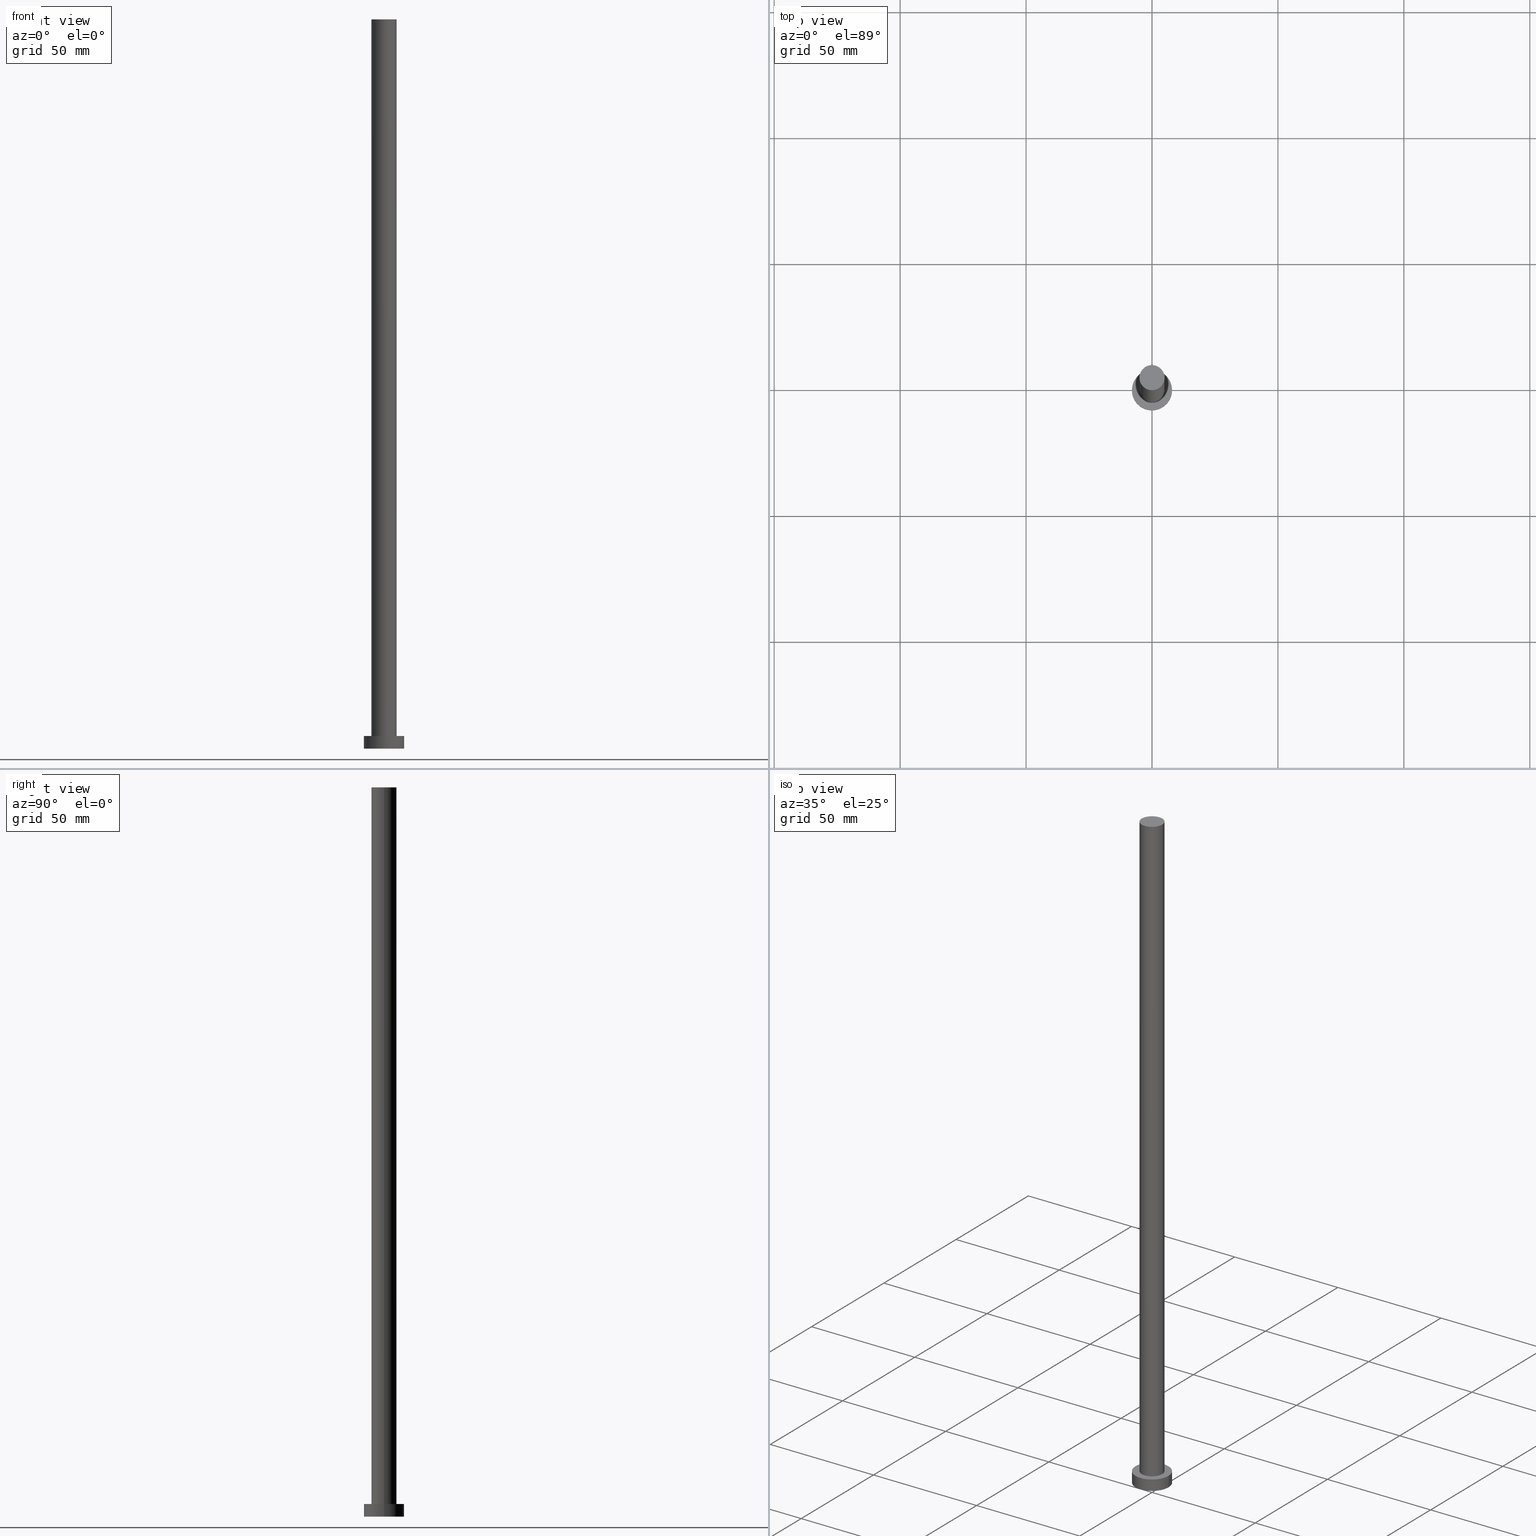
[diagram: canonical four-view strip — front | top / right | iso, engineering-drawing reading convention]
A machine part, canonical four-view strip (front | top / right | iso — engineering-drawing reading convention). The complete STEP part file that produces these views, byte-faithful:
ISO-10303-21;
HEADER;
FILE_DESCRIPTION (( 'STEP AP203' ),
    '1' );
FILE_NAME ('f540.STEP',
    '2023-03-02T13:17:27',
    ( '' ),
    ( '' ),
    'SwSTEP 2.0',
    'SolidWorks 2019',
    '' );
FILE_SCHEMA (( 'CONFIG_CONTROL_DESIGN' ));
ENDSEC;

DATA;
#1 = COORDINATED_UNIVERSAL_TIME_OFFSET ( 1, 0, .AHEAD. ) ;
#2 = CARTESIAN_POINT ( 'NONE',  ( 0.000000000000000000, 0.000000000000000000, 0.000000000000000000 ) ) ;
#3 = APPROVAL_PERSON_ORGANIZATION ( #96, #226, #100 ) ;
#4 = ORIENTED_EDGE ( 'NONE', *, *, #206, .T. ) ;
#5 = DATE_AND_TIME ( #167, #19 ) ;
#6 = VECTOR ( 'NONE', #211, 1000.000000000000000 ) ;
#7 = CARTESIAN_POINT ( 'NONE',  ( -8.000000000000000000, 0.000000000000000000, 5.000000000000000000 ) ) ;
#8 = AXIS2_PLACEMENT_3D ( 'NONE', #94, #136, #14 ) ;
#9 = DIRECTION ( 'NONE',  ( -1.000000000000000000, 0.000000000000000000, 0.000000000000000000 ) ) ;
#10 = AXIS2_PLACEMENT_3D ( 'NONE', #191, #158, #179 ) ;
#11 = ADVANCED_FACE ( 'NONE', ( #141 ), #224, .F. ) ;
#12 = LINE ( 'NONE', #169, #15 ) ;
#13 = APPROVAL_DATE_TIME ( #249, #140 ) ;
#14 = DIRECTION ( 'NONE',  ( 1.000000000000000000, 0.000000000000000000, 0.000000000000000000 ) ) ;
#15 = VECTOR ( 'NONE', #29, 1000.000000000000000 ) ;
#16 = AXIS2_PLACEMENT_3D ( 'NONE', #238, #52, #59 ) ;
#17 = FACE_OUTER_BOUND ( 'NONE', #175, .T. ) ;
#18 = PERSON_AND_ORGANIZATION ( #235, #42 ) ;
#19 = LOCAL_TIME ( 14, 17, 27.00000000000000000, #208 ) ;
#20 = ORIENTED_EDGE ( 'NONE', *, *, #128, .T. ) ;
#21 = APPROVAL_ROLE ( '' ) ;
#22 = ORIENTED_EDGE ( 'NONE', *, *, #160, .T. ) ;
#23 = APPLICATION_PROTOCOL_DEFINITION ( 'international standard', 'config_control_design', 1994, #53 ) ;
#24 = VERTEX_POINT ( 'NONE', #255 ) ;
#25 = APPROVAL_ROLE ( '' ) ;
#26 = DIRECTION ( 'NONE',  ( 1.000000000000000000, 0.000000000000000000, -0.000000000000000000 ) ) ;
#27 = EDGE_CURVE ( 'NONE', #97, #180, #47, .T. ) ;
#28 = LINE ( 'NONE', #152, #237 ) ;
#29 = DIRECTION ( 'NONE',  ( -0.000000000000000000, -0.000000000000000000, -1.000000000000000000 ) ) ;
#30 = PERSON_AND_ORGANIZATION ( #235, #42 ) ;
#31 = DIRECTION ( 'NONE',  ( -0.000000000000000000, -0.000000000000000000, -1.000000000000000000 ) ) ;
#32 = CIRCLE ( 'NONE', #58, 5.000000000000000888 ) ;
#33 = EDGE_LOOP ( 'NONE', ( #123, #114, #22, #37 ) ) ;
#34 = CIRCLE ( 'NONE', #216, 5.000000000000000888 ) ;
#35 = EDGE_LOOP ( 'NONE', ( #124, #201, #146, #139 ) ) ;
#36 = AXIS2_PLACEMENT_3D ( 'NONE', #57, #153, #178 ) ;
#37 = ORIENTED_EDGE ( 'NONE', *, *, #118, .F. ) ;
#38 = ADVANCED_FACE ( 'NONE', ( #65 ), #198, .T. ) ;
#39 = APPROVAL_DATE_TIME ( #159, #226 ) ;
#40 = EDGE_LOOP ( 'NONE', ( #239, #126 ) ) ;
#41 = VECTOR ( 'NONE', #73, 1000.000000000000000 ) ;
#42 = ORGANIZATION ( 'NEUR�EN�', 'NEUR�EN�', '' ) ;
#43 = PERSON_AND_ORGANIZATION ( #235, #42 ) ;
#44 = DATE_TIME_ROLE ( 'creation_date' ) ;
#45 = CARTESIAN_POINT ( 'NONE',  ( 0.000000000000000000, 0.000000000000000000, 289.5000000000000000 ) ) ;
#46 = DIRECTION ( 'NONE',  ( 0.000000000000000000, 0.000000000000000000, 1.000000000000000000 ) ) ;
#47 = CIRCLE ( 'NONE', #234, 8.000000000000000000 ) ;
#48 = DIRECTION ( 'NONE',  ( 1.000000000000000000, 0.000000000000000000, 0.000000000000000000 ) ) ;
#49 = DIRECTION ( 'NONE',  ( 0.000000000000000000, 0.000000000000000000, 1.000000000000000000 ) ) ;
#50 = UNCERTAINTY_MEASURE_WITH_UNIT (LENGTH_MEASURE( 1.000000000000000082E-05 ), #115, 'distance_accuracy_value', 'NONE');
#51 = SECURITY_CLASSIFICATION ( '', '', #142 ) ;
#52 = DIRECTION ( 'NONE',  ( 0.000000000000000000, 0.000000000000000000, 1.000000000000000000 ) ) ;
#53 = APPLICATION_CONTEXT ( 'configuration controlled 3d designs of mechanical parts and assemblies' ) ;
#54 = ORIENTED_EDGE ( 'NONE', *, *, #165, .T. ) ;
#55 = PERSON_AND_ORGANIZATION_ROLE ( 'classification_officer' ) ;
#56 = CC_DESIGN_PERSON_AND_ORGANIZATION_ASSIGNMENT ( #43, #166, ( #93 ) ) ;
#57 = CARTESIAN_POINT ( 'NONE',  ( 0.000000000000000000, 0.000000000000000000, 289.5000000000000000 ) ) ;
#58 = AXIS2_PLACEMENT_3D ( 'NONE', #45, #187, #148 ) ;
#59 = DIRECTION ( 'NONE',  ( 1.000000000000000000, 0.000000000000000000, -0.000000000000000000 ) ) ;
#60 = ORIENTED_EDGE ( 'NONE', *, *, #72, .F. ) ;
#61 = ORIENTED_EDGE ( 'NONE', *, *, #165, .F. ) ;
#62 = PRODUCT_RELATED_PRODUCT_CATEGORY ( 'detail', '', ( #233 ) ) ;
#63 = AXIS2_PLACEMENT_3D ( 'NONE', #74, #194, #80 ) ;
#64 = PERSON_AND_ORGANIZATION ( #235, #42 ) ;
#65 = FACE_OUTER_BOUND ( 'NONE', #117, .T. ) ;
#66 = APPROVAL_DATE_TIME ( #229, #102 ) ;
#67 = MECHANICAL_CONTEXT ( 'NONE', #53, 'mechanical' ) ;
#68 = VERTEX_POINT ( 'NONE', #228 ) ;
#69 = DIRECTION ( 'NONE',  ( -0.000000000000000000, -0.000000000000000000, -1.000000000000000000 ) ) ;
#70 = LOCAL_TIME ( 14, 17, 27.00000000000000000, #144 ) ;
#71 = FACE_OUTER_BOUND ( 'NONE', #251, .T. ) ;
#72 = EDGE_CURVE ( 'NONE', #79, #182, #188, .T. ) ;
#73 = DIRECTION ( 'NONE',  ( -0.000000000000000000, -0.000000000000000000, -1.000000000000000000 ) ) ;
#74 = CARTESIAN_POINT ( 'NONE',  ( 0.000000000000000000, 0.000000000000000000, 289.5000000000000000 ) ) ;
#75 = FACE_OUTER_BOUND ( 'NONE', #40, .T. ) ;
#76 = EDGE_LOOP ( 'NONE', ( #61, #204 ) ) ;
#77 = EDGE_CURVE ( 'NONE', #68, #196, #12, .T. ) ;
#78 = CALENDAR_DATE ( 2023, 2, 3 ) ;
#79 = VERTEX_POINT ( 'NONE', #189 ) ;
#80 = DIRECTION ( 'NONE',  ( -1.000000000000000000, 0.000000000000000000, 0.000000000000000000 ) ) ;
#81 = PERSON_AND_ORGANIZATION ( #235, #42 ) ;
#82 = EDGE_CURVE ( 'NONE', #253, #68, #32, .T. ) ;
#83 = AXIS2_PLACEMENT_3D ( 'NONE', #215, #134, #236 ) ;
#84 = DIRECTION ( 'NONE',  ( 0.000000000000000000, 0.000000000000000000, 1.000000000000000000 ) ) ;
#85 = PERSON_AND_ORGANIZATION_ROLE ( 'design_owner' ) ;
#86 = EDGE_LOOP ( 'NONE', ( #195, #60 ) ) ;
#87 = DIRECTION ( 'NONE',  ( 1.000000000000000000, 0.000000000000000000, 0.000000000000000000 ) ) ;
#88 = AXIS2_PLACEMENT_3D ( 'NONE', #2, #84, #48 ) ;
#89 = CC_DESIGN_APPROVAL ( #140, ( #51 ) ) ;
#90 = LINE ( 'NONE', #7, #6 ) ;
#91 = CARTESIAN_POINT ( 'NONE',  ( -8.000000000000000000, 0.000000000000000000, 5.000000000000000000 ) ) ;
#92 = CYLINDRICAL_SURFACE ( 'NONE', #116, 8.000000000000000000 ) ;
#93 = PRODUCT_DEFINITION ( 'NEZN�M�', '', #199, #222 ) ;
#94 = CARTESIAN_POINT ( 'NONE',  ( 0.000000000000000000, 0.000000000000000000, 5.000000000000000000 ) ) ;
#95 = PLANE ( 'NONE',  #16 ) ;
#96 = PERSON_AND_ORGANIZATION ( #235, #42 ) ;
#97 = VERTEX_POINT ( 'NONE', #91 ) ;
#98 =( GEOMETRIC_REPRESENTATION_CONTEXT ( 3 ) GLOBAL_UNCERTAINTY_ASSIGNED_CONTEXT ( ( #50 ) ) GLOBAL_UNIT_ASSIGNED_CONTEXT ( ( #115, #192, #185 ) ) REPRESENTATION_CONTEXT ( 'NONE', 'WORKASPACE' ) );
#99 = CALENDAR_DATE ( 2023, 2, 3 ) ;
#100 = APPROVAL_ROLE ( '' ) ;
#101 = DIRECTION ( 'NONE',  ( -1.000000000000000000, 0.000000000000000000, 0.000000000000000000 ) ) ;
#102 = APPROVAL ( #227, 'NEUR�EN�' ) ;
#103 = APPROVAL_PERSON_ORGANIZATION ( #220, #102, #21 ) ;
#104 = ORIENTED_EDGE ( 'NONE', *, *, #82, .T. ) ;
#105 = CARTESIAN_POINT ( 'NONE',  ( 0.000000000000000000, 0.000000000000000000, 5.000000000000000000 ) ) ;
#106 = DATE_TIME_ROLE ( 'classification_date' ) ;
#107 = CYLINDRICAL_SURFACE ( 'NONE', #209, 8.000000000000000000 ) ;
#108 = CC_DESIGN_PERSON_AND_ORGANIZATION_ASSIGNMENT ( #64, #85, ( #233 ) ) ;
#109 = PRODUCT_DEFINITION_SHAPE ( 'NONE', 'NONE',  #93 ) ;
#110 = CIRCLE ( 'NONE', #221, 5.000000000000000888 ) ;
#111 = CARTESIAN_POINT ( 'NONE',  ( 8.000000000000000000, 9.797174393178825657E-16, 5.000000000000000000 ) ) ;
#112 = APPROVAL_PERSON_ORGANIZATION ( #30, #140, #25 ) ;
#113 = CC_DESIGN_PERSON_AND_ORGANIZATION_ASSIGNMENT ( #81, #163, ( #199 ) ) ;
#114 = ORIENTED_EDGE ( 'NONE', *, *, #77, .T. ) ;
#115 =( LENGTH_UNIT ( ) NAMED_UNIT ( * ) SI_UNIT ( .MILLI., .METRE. ) );
#116 = AXIS2_PLACEMENT_3D ( 'NONE', #170, #168, #9 ) ;
#117 = EDGE_LOOP ( 'NONE', ( #131, #135, #243, #54 ) ) ;
#118 = EDGE_CURVE ( 'NONE', #253, #24, #28, .T. ) ;
#119 = ORIENTED_EDGE ( 'NONE', *, *, #156, .F. ) ;
#120 = ORIENTED_EDGE ( 'NONE', *, *, #27, .F. ) ;
#121 = LOCAL_TIME ( 14, 17, 27.00000000000000000, #183 ) ;
#122 = DIRECTION ( 'NONE',  ( 1.000000000000000000, 0.000000000000000000, 0.000000000000000000 ) ) ;
#123 = ORIENTED_EDGE ( 'NONE', *, *, #206, .F. ) ;
#124 = ORIENTED_EDGE ( 'NONE', *, *, #250, .F. ) ;
#125 = APPROVAL_STATUS ( 'not_yet_approved' ) ;
#126 = ORIENTED_EDGE ( 'NONE', *, *, #250, .T. ) ;
#127 = DIRECTION ( 'NONE',  ( -1.000000000000000000, 0.000000000000000000, 0.000000000000000000 ) ) ;
#128 = EDGE_CURVE ( 'NONE', #97, #182, #90, .T. ) ;
#129 = CARTESIAN_POINT ( 'NONE',  ( 0.000000000000000000, 0.000000000000000000, 5.000000000000000000 ) ) ;
#130 = CARTESIAN_POINT ( 'NONE',  ( 0.000000000000000000, 0.000000000000000000, 5.000000000000000000 ) ) ;
#131 = ORIENTED_EDGE ( 'NONE', *, *, #77, .F. ) ;
#132 = AXIS2_PLACEMENT_3D ( 'NONE', #202, #252, #122 ) ;
#133 = CC_DESIGN_PERSON_AND_ORGANIZATION_ASSIGNMENT ( #18, #254, ( #199 ) ) ;
#134 = DIRECTION ( 'NONE',  ( 0.000000000000000000, 0.000000000000000000, 1.000000000000000000 ) ) ;
#135 = ORIENTED_EDGE ( 'NONE', *, *, #82, .F. ) ;
#136 = DIRECTION ( 'NONE',  ( 0.000000000000000000, 0.000000000000000000, 1.000000000000000000 ) ) ;
#137 = ORIENTED_EDGE ( 'NONE', *, *, #210, .T. ) ;
#138 = APPLICATION_PROTOCOL_DEFINITION ( 'international standard', 'config_control_design', 1994, #154 ) ;
#139 = ORIENTED_EDGE ( 'NONE', *, *, #128, .F. ) ;
#140 = APPROVAL ( #147, 'NEUR�EN�' ) ;
#141 = FACE_OUTER_BOUND ( 'NONE', #86, .T. ) ;
#142 = SECURITY_CLASSIFICATION_LEVEL ( 'unclassified' ) ;
#143 = DIRECTION ( 'NONE',  ( -0.000000000000000000, -0.000000000000000000, -1.000000000000000000 ) ) ;
#144 = COORDINATED_UNIVERSAL_TIME_OFFSET ( 1, 0, .AHEAD. ) ;
#145 = DATE_AND_TIME ( #200, #70 ) ;
#146 = ORIENTED_EDGE ( 'NONE', *, *, #72, .T. ) ;
#147 = APPROVAL_STATUS ( 'not_yet_approved' ) ;
#148 = DIRECTION ( 'NONE',  ( 1.000000000000000000, 0.000000000000000000, 0.000000000000000000 ) ) ;
#149 = CARTESIAN_POINT ( 'NONE',  ( 8.000000000000000000, 9.797174393178825657E-16, 5.000000000000000000 ) ) ;
#150 = ADVANCED_FACE ( 'NONE', ( #71 ), #92, .T. ) ;
#151 = DIRECTION ( 'NONE',  ( 1.000000000000000000, 0.000000000000000000, 0.000000000000000000 ) ) ;
#152 = CARTESIAN_POINT ( 'NONE',  ( -5.000000000000000888, 0.000000000000000000, 289.5000000000000000 ) ) ;
#153 = DIRECTION ( 'NONE',  ( 0.000000000000000000, 0.000000000000000000, 1.000000000000000000 ) ) ;
#154 = APPLICATION_CONTEXT ( 'configuration controlled 3d designs of mechanical parts and assemblies' ) ;
#155 = CC_DESIGN_APPROVAL ( #226, ( #199 ) ) ;
#156 = EDGE_CURVE ( 'NONE', #180, #79, #247, .T. ) ;
#157 = FACE_BOUND ( 'NONE', #76, .T. ) ;
#158 = DIRECTION ( 'NONE',  ( 0.000000000000000000, 0.000000000000000000, 1.000000000000000000 ) ) ;
#159 = DATE_AND_TIME ( #99, #121 ) ;
#160 = EDGE_CURVE ( 'NONE', #196, #24, #34, .T. ) ;
#161 = ADVANCED_BREP_SHAPE_REPRESENTATION ( 'f540', ( #244, #132 ), #98 ) ;
#162 = CARTESIAN_POINT ( 'NONE',  ( 0.000000000000000000, 0.000000000000000000, 289.5000000000000000 ) ) ;
#163 = PERSON_AND_ORGANIZATION_ROLE ( 'design_supplier' ) ;
#164 = DIRECTION ( 'NONE',  ( 0.000000000000000000, 0.000000000000000000, 1.000000000000000000 ) ) ;
#165 = EDGE_CURVE ( 'NONE', #24, #196, #110, .T. ) ;
#166 = PERSON_AND_ORGANIZATION_ROLE ( 'creator' ) ;
#167 = CALENDAR_DATE ( 2023, 2, 3 ) ;
#168 = DIRECTION ( 'NONE',  ( -0.000000000000000000, -0.000000000000000000, -1.000000000000000000 ) ) ;
#169 = CARTESIAN_POINT ( 'NONE',  ( 5.000000000000000888, 6.123233995736767268E-16, 289.5000000000000000 ) ) ;
#170 = CARTESIAN_POINT ( 'NONE',  ( 0.000000000000000000, 0.000000000000000000, 5.000000000000000000 ) ) ;
#171 = AXIS2_PLACEMENT_3D ( 'NONE', #162, #143, #101 ) ;
#172 = ADVANCED_FACE ( 'NONE', ( #248 ), #107, .T. ) ;
#173 = CIRCLE ( 'NONE', #36, 5.000000000000000888 ) ;
#174 = CARTESIAN_POINT ( 'NONE',  ( 5.000000000000000888, 6.123233995736767268E-16, 5.000000000000000000 ) ) ;
#175 = EDGE_LOOP ( 'NONE', ( #104, #4 ) ) ;
#176 = CLOSED_SHELL ( 'NONE', ( #219, #172, #150, #241, #11, #38, #193 ) ) ;
#177 = LOCAL_TIME ( 14, 17, 27.00000000000000000, #1 ) ;
#178 = DIRECTION ( 'NONE',  ( 1.000000000000000000, 0.000000000000000000, 0.000000000000000000 ) ) ;
#179 = DIRECTION ( 'NONE',  ( 1.000000000000000000, 0.000000000000000000, -0.000000000000000000 ) ) ;
#180 = VERTEX_POINT ( 'NONE', #111 ) ;
#181 = CC_DESIGN_APPROVAL ( #102, ( #93 ) ) ;
#182 = VERTEX_POINT ( 'NONE', #190 ) ;
#183 = COORDINATED_UNIVERSAL_TIME_OFFSET ( 1, 0, .AHEAD. ) ;
#184 = CC_DESIGN_DATE_AND_TIME_ASSIGNMENT ( #145, #44, ( #93 ) ) ;
#185 =( NAMED_UNIT ( * ) SI_UNIT ( $, .STERADIAN. ) SOLID_ANGLE_UNIT ( ) );
#186 = CC_DESIGN_DATE_AND_TIME_ASSIGNMENT ( #5, #106, ( #51 ) ) ;
#187 = DIRECTION ( 'NONE',  ( 0.000000000000000000, 0.000000000000000000, 1.000000000000000000 ) ) ;
#188 = CIRCLE ( 'NONE', #88, 8.000000000000000000 ) ;
#189 = CARTESIAN_POINT ( 'NONE',  ( 8.000000000000000000, 9.797174393178825657E-16, 0.000000000000000000 ) ) ;
#190 = CARTESIAN_POINT ( 'NONE',  ( -8.000000000000000000, 0.000000000000000000, 0.000000000000000000 ) ) ;
#191 = CARTESIAN_POINT ( 'NONE',  ( 0.000000000000000000, 0.000000000000000000, 5.000000000000000000 ) ) ;
#192 =( NAMED_UNIT ( * ) PLANE_ANGLE_UNIT ( ) SI_UNIT ( $, .RADIAN. ) );
#193 = ADVANCED_FACE ( 'NONE', ( #17 ), #95, .T. ) ;
#194 = DIRECTION ( 'NONE',  ( -0.000000000000000000, -0.000000000000000000, -1.000000000000000000 ) ) ;
#195 = ORIENTED_EDGE ( 'NONE', *, *, #210, .F. ) ;
#196 = VERTEX_POINT ( 'NONE', #174 ) ;
#197 = PLANE ( 'NONE',  #10 ) ;
#198 = CYLINDRICAL_SURFACE ( 'NONE', #171, 5.000000000000000888 ) ;
#199 = PRODUCT_DEFINITION_FORMATION_WITH_SPECIFIED_SOURCE ( 'LIBOVOLN�', '', #233, .NOT_KNOWN. ) ;
#200 = CALENDAR_DATE ( 2023, 2, 3 ) ;
#201 = ORIENTED_EDGE ( 'NONE', *, *, #156, .T. ) ;
#202 = CARTESIAN_POINT ( 'NONE',  ( 0.000000000000000000, 0.000000000000000000, 0.000000000000000000 ) ) ;
#203 = DIRECTION ( 'NONE',  ( 0.000000000000000000, 0.000000000000000000, 1.000000000000000000 ) ) ;
#204 = ORIENTED_EDGE ( 'NONE', *, *, #160, .F. ) ;
#205 = CARTESIAN_POINT ( 'NONE',  ( 0.000000000000000000, 0.000000000000000000, 0.000000000000000000 ) ) ;
#206 = EDGE_CURVE ( 'NONE', #68, #253, #173, .T. ) ;
#207 = COORDINATED_UNIVERSAL_TIME_OFFSET ( 1, 0, .AHEAD. ) ;
#208 = COORDINATED_UNIVERSAL_TIME_OFFSET ( 1, 0, .AHEAD. ) ;
#209 = AXIS2_PLACEMENT_3D ( 'NONE', #212, #31, #127 ) ;
#210 = EDGE_CURVE ( 'NONE', #182, #79, #218, .T. ) ;
#211 = DIRECTION ( 'NONE',  ( -0.000000000000000000, -0.000000000000000000, -1.000000000000000000 ) ) ;
#212 = CARTESIAN_POINT ( 'NONE',  ( 0.000000000000000000, 0.000000000000000000, 5.000000000000000000 ) ) ;
#213 = LOCAL_TIME ( 14, 17, 27.00000000000000000, #207 ) ;
#214 = FACE_OUTER_BOUND ( 'NONE', #33, .T. ) ;
#215 = CARTESIAN_POINT ( 'NONE',  ( 0.000000000000000000, 0.000000000000000000, 0.000000000000000000 ) ) ;
#216 = AXIS2_PLACEMENT_3D ( 'NONE', #129, #49, #232 ) ;
#217 = CARTESIAN_POINT ( 'NONE',  ( -5.000000000000000888, 0.000000000000000000, 289.5000000000000000 ) ) ;
#218 = CIRCLE ( 'NONE', #83, 8.000000000000000000 ) ;
#219 = ADVANCED_FACE ( 'NONE', ( #214 ), #240, .T. ) ;
#220 = PERSON_AND_ORGANIZATION ( #235, #42 ) ;
#221 = AXIS2_PLACEMENT_3D ( 'NONE', #130, #46, #151 ) ;
#222 = DESIGN_CONTEXT ( 'detailed design', #154, 'design' ) ;
#223 = CALENDAR_DATE ( 2023, 2, 3 ) ;
#224 = PLANE ( 'NONE',  #230 ) ;
#225 = CC_DESIGN_SECURITY_CLASSIFICATION ( #51, ( #199 ) ) ;
#226 = APPROVAL ( #125, 'NEUR�EN�' ) ;
#227 = APPROVAL_STATUS ( 'not_yet_approved' ) ;
#228 = CARTESIAN_POINT ( 'NONE',  ( 5.000000000000000888, 6.123233995736767268E-16, 289.5000000000000000 ) ) ;
#229 = DATE_AND_TIME ( #223, #177 ) ;
#230 = AXIS2_PLACEMENT_3D ( 'NONE', #205, #203, #26 ) ;
#231 = CC_DESIGN_PERSON_AND_ORGANIZATION_ASSIGNMENT ( #242, #55, ( #51 ) ) ;
#232 = DIRECTION ( 'NONE',  ( 1.000000000000000000, 0.000000000000000000, 0.000000000000000000 ) ) ;
#233 = PRODUCT ( 'f540', 'f540', '', ( #67 ) ) ;
#234 = AXIS2_PLACEMENT_3D ( 'NONE', #105, #164, #87 ) ;
#235 = PERSON ( 'NEUR�EN�', 'NEUR�EN�', 'NEUR�EN�', ('NEUR�EN�'), ('NEUR�EN�'), ('NEUR�EN�') ) ;
#236 = DIRECTION ( 'NONE',  ( 1.000000000000000000, 0.000000000000000000, 0.000000000000000000 ) ) ;
#237 = VECTOR ( 'NONE', #69, 1000.000000000000000 ) ;
#238 = CARTESIAN_POINT ( 'NONE',  ( 0.000000000000000000, 0.000000000000000000, 289.5000000000000000 ) ) ;
#239 = ORIENTED_EDGE ( 'NONE', *, *, #27, .T. ) ;
#240 = CYLINDRICAL_SURFACE ( 'NONE', #63, 5.000000000000000888 ) ;
#241 = ADVANCED_FACE ( 'NONE', ( #157, #75 ), #197, .T. ) ;
#242 = PERSON_AND_ORGANIZATION ( #235, #42 ) ;
#243 = ORIENTED_EDGE ( 'NONE', *, *, #118, .T. ) ;
#244 = MANIFOLD_SOLID_BREP ( 'P�idat vysunut�m3', #176 ) ;
#245 = SHAPE_DEFINITION_REPRESENTATION ( #109, #161 ) ;
#246 = CIRCLE ( 'NONE', #8, 8.000000000000000000 ) ;
#247 = LINE ( 'NONE', #149, #41 ) ;
#248 = FACE_OUTER_BOUND ( 'NONE', #35, .T. ) ;
#249 = DATE_AND_TIME ( #78, #213 ) ;
#250 = EDGE_CURVE ( 'NONE', #180, #97, #246, .T. ) ;
#251 = EDGE_LOOP ( 'NONE', ( #119, #120, #20, #137 ) ) ;
#252 = DIRECTION ( 'NONE',  ( 0.000000000000000000, 0.000000000000000000, 1.000000000000000000 ) ) ;
#253 = VERTEX_POINT ( 'NONE', #217 ) ;
#254 = PERSON_AND_ORGANIZATION_ROLE ( 'creator' ) ;
#255 = CARTESIAN_POINT ( 'NONE',  ( -5.000000000000000888, 0.000000000000000000, 5.000000000000000000 ) ) ;
ENDSEC;
END-ISO-10303-21;
